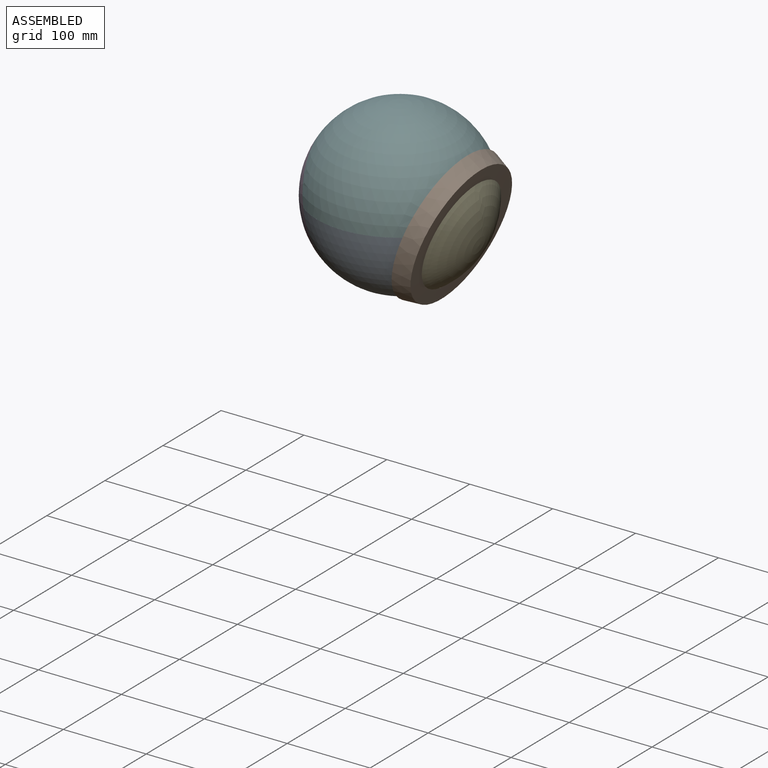
[diagram: assembled view]
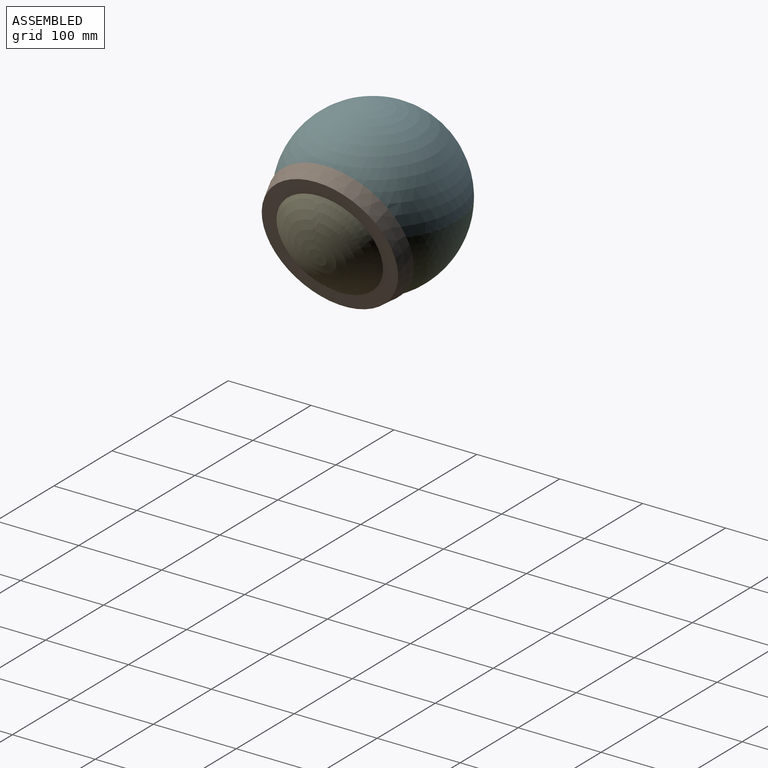
[diagram: assembled view, second angle]
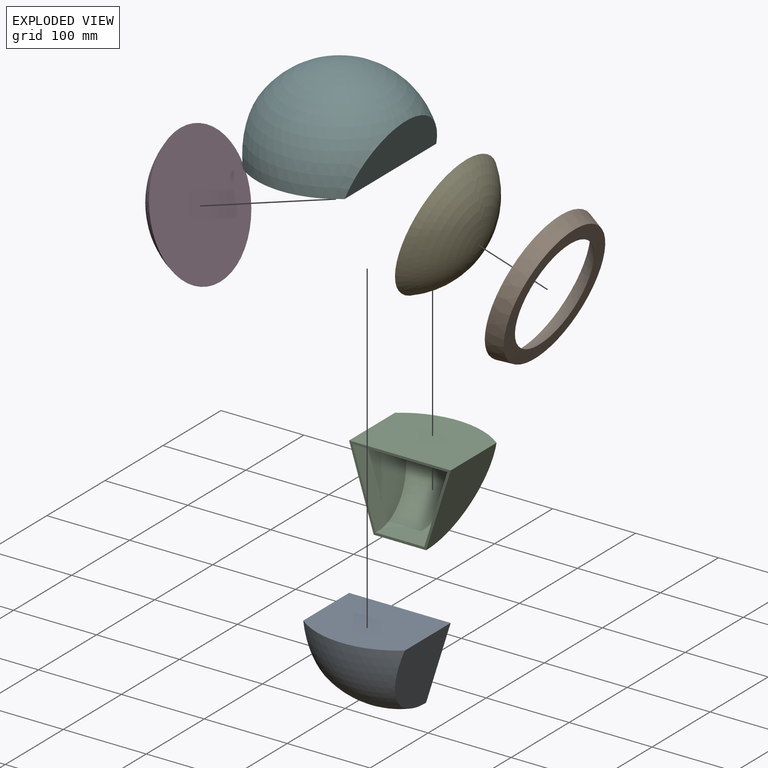
[diagram: exploded view]
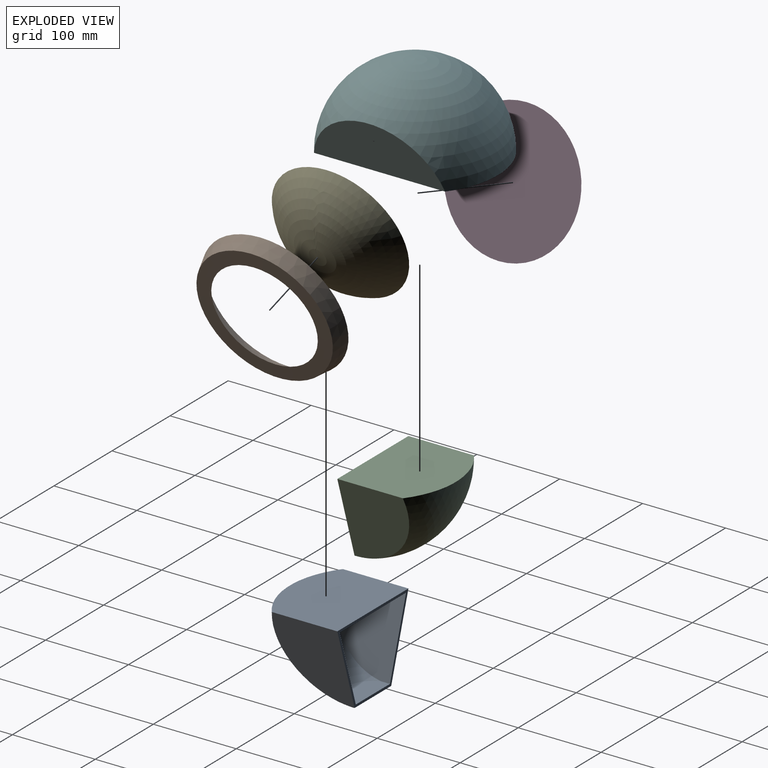
[diagram: exploded view, second angle]
ASSEMBLY  parts=6 mates=5
PART A: 11 faces, bbox 200x100x94.9 mm
  f0: plane 122.5x94.88mm, normal (0,1,0), area 1115.8mm2, adj f2,f3,f4,f5,f7,f8,f9,f10
  f1: sphere r=100mm, area 11882.5mm2, adj f2,f3,f4,f5
  f2: plane 94.88x81.13mm, normal (-0.95,0,-0.3), area 6639.2mm2, adj f0,f1,f4
  f3: plane 94.88x81.13mm, normal (0.95,0,-0.3), area 6639.2mm2, adj f0,f1,f4
  f4: plane 122.5x100mm, normal (0,0,1), area 11433.8mm2, adj f0,f1,f2,f3
  f5: plane 63.2x31.6mm, normal (0,0,-1), area 1568.7mm2, adj f0,f1
  f6: sphere r=97mm, area 10356.8mm2, adj f7,f8,f9,f10
  f7: plane 88.88x79.58mm, normal (0.95,0,0.3), area 6092.6mm2, adj f0,f6,f9,f10
  f8: plane 88.88x79.58mm, normal (-0.95,0,0.3), area 6092.6mm2, adj f0,f6,f9,f10
  f9: plane 114.34x96.95mm, normal (0,0,-1), area 10404.6mm2, adj f0,f6,f7,f8
  f10: plane 58.79x31.11mm, normal (0,0,1), area 1496.9mm2, adj f0,f6,f7,f8
PART B: 4 faces, bbox 68x173x165.1 mm
  f0: cone r=80.53mm half-angle=89.4deg, axis (-0.95,0,0.3), area 7951.8mm2, adj f2,f3
  f1: plane 173x165.12mm, normal (-0.95,0,0.3), area 2827.4mm2, adj f2,f3
  f2: cone r=86.5mm half-angle=17.4deg, axis (-0.95,0,0.3), area 10495.1mm2, adj f0,f1
  f3: sphere r=100mm, area 12119.7mm2, adj f0,f1
PART C: 11 faces, bbox 200x100x94.9 mm
  f0: plane 122.5x94.88mm, normal (0,-1,0), area 1115.8mm2, adj f1,f2,f3,f4,f6,f7,f8,f9
  f1: plane 94.88x81.13mm, normal (-0.95,0,-0.3), area 6639.2mm2, adj f0,f3,f5
  f2: plane 94.88x81.13mm, normal (0.95,0,-0.3), area 6639.2mm2, adj f0,f3,f5
  f3: plane 122.5x100mm, normal (0,0,1), area 11433.8mm2, adj f0,f1,f2,f5
  f4: plane 63.2x31.6mm, normal (0,0,-1), area 1568.7mm2, adj f0,f5
  f5: sphere r=100mm, area 11882.5mm2, adj f1,f2,f3,f4
  f6: plane 88.88x79.58mm, normal (0.95,0,0.3), area 6092.6mm2, adj f0,f8,f9,f10
  f7: plane 88.88x79.58mm, normal (-0.95,0,0.3), area 6092.6mm2, adj f0,f8,f9,f10
  f8: plane 114.34x96.95mm, normal (0,0,-1), area 10404.6mm2, adj f0,f6,f7,f10
  f9: plane 58.79x31.11mm, normal (0,0,1), area 1496.9mm2, adj f0,f6,f7,f10
  f10: sphere r=97mm, area 10356.8mm2, adj f6,f7,f8,f9
PART D: 2 faces, bbox 68.4x162.3x154.9 mm
  f0: sphere r=100mm, area 26099.2mm2, adj f1
  f1: plane 162.26x154.88mm, normal (0.95,0,0.3), area 20678.6mm2, adj f0
PART E: 2 faces, bbox 68.4x162.3x154.9 mm
  f0: sphere r=100mm, area 26099.2mm2, adj f1
  f1: plane 162.26x154.88mm, normal (-0.95,0,0.3), area 20678.6mm2, adj f0
PART F: 7 faces, bbox 200x200x100 mm
  f0: plane 200x122.5mm, normal (0,0,-1), area 1754.5mm2, adj f1,f2,f3,f4,f5,f6
  f1: sphere r=100mm, area 46480.4mm2, adj f0,f2,f3
  f2: plane 158.09x60mm, normal (-0.95,0,-0.3), area 7400.1mm2, adj f0,f1
  f3: plane 158.09x60mm, normal (0.95,0,-0.3), area 7400.1mm2, adj f0,f1
  f4: sphere r=97mm, area 43081.9mm2, adj f0,f5,f6
  f5: plane 155.34x59.41mm, normal (0.95,0,0.3), area 7211.2mm2, adj f0,f4
  f6: plane 155.34x59.41mm, normal (-0.95,0,0.3), area 7211.2mm2, adj f0,f4
PLACE A t=(132.58,47.6,-2.82)mm
PLACE B t=(132.58,47.6,-2.82)mm
PLACE C t=(132.58,47.6,-2.82)mm
PLACE D t=(132.58,47.6,-2.82)mm
PLACE E t=(132.58,47.6,-2.82)mm
PLACE F t=(132.58,47.6,-2.82)mm
MATE fastened F.f2 <-> D.f1  axis (-0.95,0,-0.3) through (76.78,47.6,-20.26)mm
MATE fastened F.f3 <-> E.f1  axis (0.95,0,-0.3) through (188.38,47.6,-20.26)mm
MATE fastened B.f2 <-> E.f1  axis (-0.95,0,0.3) through (188.38,47.6,-20.26)mm
MATE fastened C.f3 <-> F.f0  axis (0,0,1) through (132.58,47.6,-2.82)mm
MATE fastened C.f3 <-> A.f4  axis (0,0,1) through (132.58,47.6,-2.82)mm
